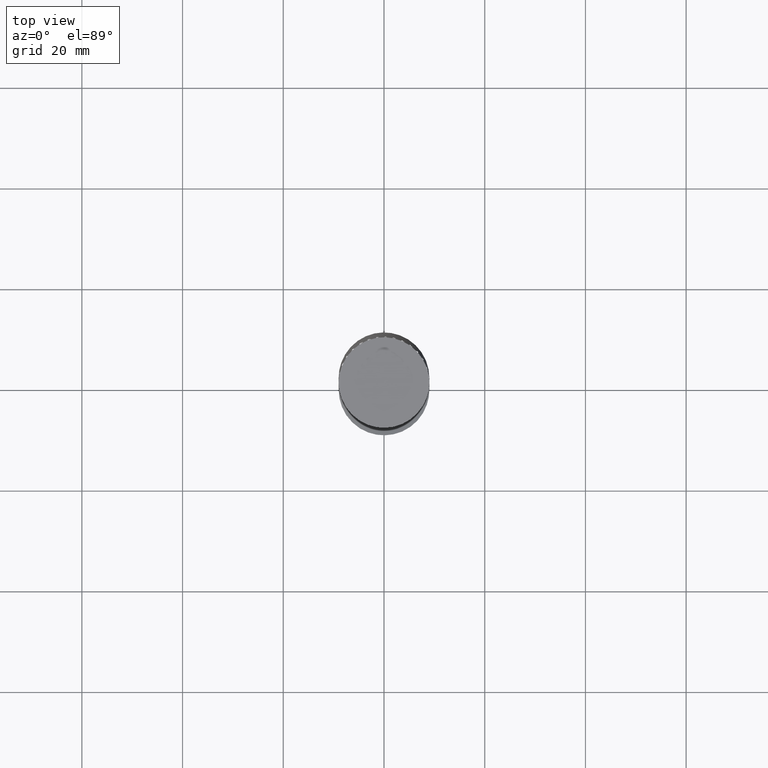
[diagram: clean part render]
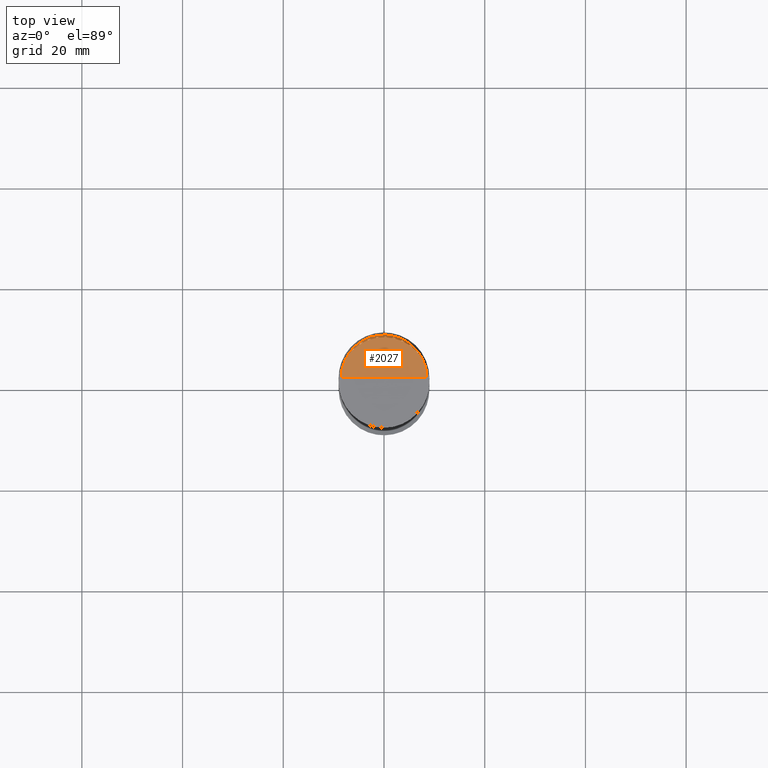
[diagram: same view with one face highlighted and labeled with its STEP entity id]
A machine part, top view. The second image highlights one B-rep face of the part: STEP entity #2027.
In plain terms, the highlighted face is a freeform B-spline surface patch.
Its self-contained STEP definition (entity closure, byte-faithful):
#1785=CARTESIAN_POINT('',(8.5,0.0,48.0));
#1786=CARTESIAN_POINT('',(8.5,8.5,48.0));
#1787=CARTESIAN_POINT('',(0.0,8.5,48.0));
#1788=CARTESIAN_POINT('',(-8.5,8.5,48.0));
#1789=CARTESIAN_POINT('',(-8.5,0.0,48.0));
#1790=CARTESIAN_POINT('',(0.0,0.0,48.0));
#2012=(
BOUNDED_SURFACE()
B_SPLINE_SURFACE(1,2,(
(#1785,#1786,#1787,#1788,#1789),
(#1790,#1790,#1790,#1790,#1790)
), .UNSPECIFIED.,.F.,.F.,.F.)
B_SPLINE_SURFACE_WITH_KNOTS((2,2),(3,2,3),(
0.0,1.0),(
0.0,0.5,1.0), .UNSPECIFIED.)
GEOMETRIC_REPRESENTATION_ITEM()
RATIONAL_B_SPLINE_SURFACE(((1.0,0.707106781187,1.0,0.707106781187,1.0),
(1.0,0.707106781187,1.0,0.707106781187,1.0)
))
REPRESENTATION_ITEM('')
SURFACE()
);
#2013=(
BOUNDED_CURVE()
B_SPLINE_CURVE(2,(#1789,#1788,#1787,#1786,#1785),.UNSPECIFIED.,.F.,.F.)
B_SPLINE_CURVE_WITH_KNOTS((3,2,3),
(0.0,0.5,1.0),.UNSPECIFIED.)
CURVE()
GEOMETRIC_REPRESENTATION_ITEM()
RATIONAL_B_SPLINE_CURVE((1.0,0.707106781187,1.0,0.707106781187,1.0))
REPRESENTATION_ITEM('')
);
#2014=(
BOUNDED_CURVE()
B_SPLINE_CURVE(1,(#1785,#1790),.UNSPECIFIED.,.F.,.F.)
B_SPLINE_CURVE_WITH_KNOTS((2,2),
(0.0,1.0),.UNSPECIFIED.)
CURVE()
GEOMETRIC_REPRESENTATION_ITEM()
RATIONAL_B_SPLINE_CURVE((1.0,1.0))
REPRESENTATION_ITEM('')
);
#2015=(
BOUNDED_CURVE()
B_SPLINE_CURVE(1,(#1790,#1789),.UNSPECIFIED.,.F.,.F.)
B_SPLINE_CURVE_WITH_KNOTS((2,2),
(0.0,1.0),.UNSPECIFIED.)
CURVE()
GEOMETRIC_REPRESENTATION_ITEM()
RATIONAL_B_SPLINE_CURVE((1.0,1.0))
REPRESENTATION_ITEM('')
);
#2016=VERTEX_POINT('',#1785);
#2017=VERTEX_POINT('',#1789);
#2018=VERTEX_POINT('',#1790);
#2019=EDGE_CURVE('',#2017,#2016,#2013,.T.);
#2020=EDGE_CURVE('',#2016,#2018,#2014,.T.);
#2021=EDGE_CURVE('',#2018,#2017,#2015,.T.);
#2022=ORIENTED_EDGE('',*,*,#2019,.T.);
#2023=ORIENTED_EDGE('',*,*,#2020,.T.);
#2024=ORIENTED_EDGE('',*,*,#2021,.T.);
#2025=EDGE_LOOP('',(#2022,#2023,#2024));
#2026=FACE_OUTER_BOUND('',#2025,.T.);
#2027=ADVANCED_FACE('',(#2026),#2012,.T.);